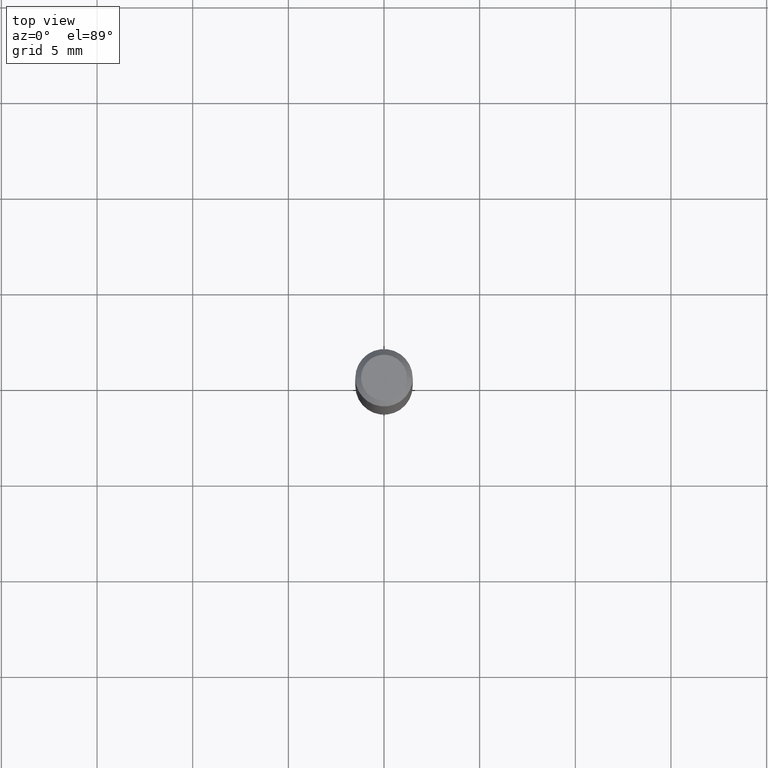
[diagram: clean part render]
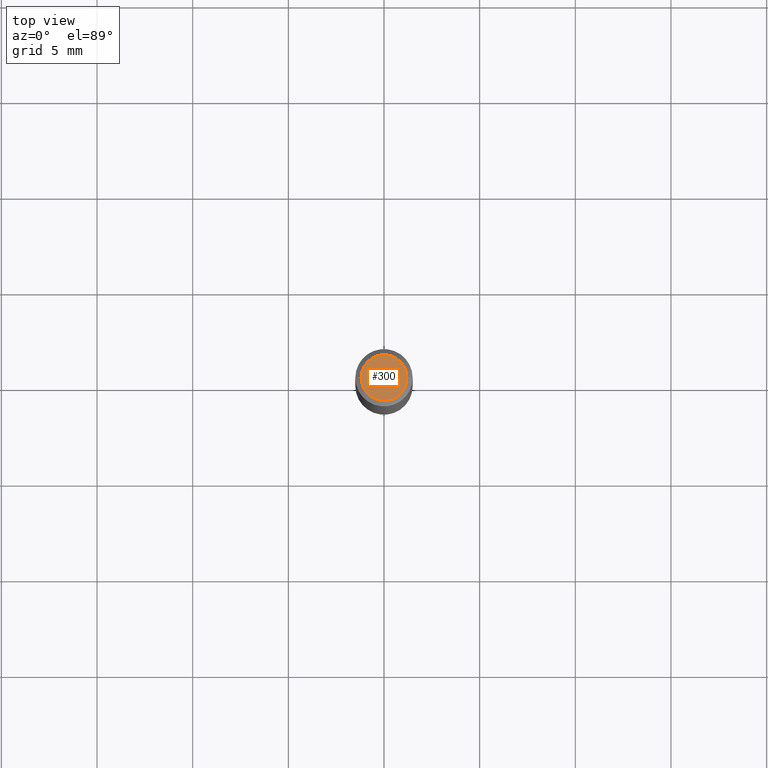
[diagram: same view with one face highlighted and labeled with its STEP entity id]
A machine part, top view. The second image highlights one B-rep face of the part: STEP entity #300.
In plain terms, the highlighted planar face has unit normal (0, -0, -1).
Its self-contained STEP definition (entity closure, byte-faithful):
#23 = DIRECTION ( 'NONE',  ( -2.445468806185136597E-29, 3.491481338843145583E-15, 1.000000000000000000 ) ) ;
#24 = EDGE_CURVE ( 'NONE', #42, #486, #441, .T. ) ;
#35 = CARTESIAN_POINT ( 'NONE',  ( 4.132873053354867254E-48, -5.900647395337818946E-34, -1.690012582823346072E-19 ) ) ;
#36 = AXIS2_PLACEMENT_3D ( 'NONE', #426, #41, #484 ) ;
#41 = DIRECTION ( 'NONE',  ( -2.445468806185136597E-29, 3.491481338843145583E-15, 1.000000000000000000 ) ) ;
#42 = VERTEX_POINT ( 'NONE', #293 ) ;
#165 = AXIS2_PLACEMENT_3D ( 'NONE', #35, #288, #442 ) ;
#175 = CARTESIAN_POINT ( 'NONE',  ( 0.04724000000000000421, -3.852183633974369345E-16, -3.380025165621689721E-19 ) ) ;
#176 = PLANE ( 'NONE',  #165 ) ;
#179 = EDGE_CURVE ( 'NONE', #486, #42, #370, .T. ) ;
#230 = ORIENTED_EDGE ( 'NONE', *, *, #179, .T. ) ;
#236 = DIRECTION ( 'NONE',  ( 1.000000000000000000, -6.982962677686266711E-15, 4.876185090822587894E-29 ) ) ;
#288 = DIRECTION ( 'NONE',  ( 2.438088387897960049E-29, -3.491481338843145188E-15, -1.000000000000000000 ) ) ;
#293 = CARTESIAN_POINT ( 'NONE',  ( -0.04724000000000000421, 3.504923541997677355E-16, -3.380025165670481712E-19 ) ) ;
#300 = ADVANCED_FACE ( 'NONE', ( #363 ), #176, .F. ) ;
#363 = FACE_OUTER_BOUND ( 'NONE', #380, .T. ) ;
#370 = CIRCLE ( 'NONE', #475, 0.04724000000000000421 ) ;
#380 = EDGE_LOOP ( 'NONE', ( #466, #230 ) ) ;
#425 = CARTESIAN_POINT ( 'NONE',  ( 8.265746106709734507E-48, -1.180129479067563789E-33, -3.380025165646692144E-19 ) ) ;
#426 = CARTESIAN_POINT ( 'NONE',  ( 8.265746106709734507E-48, -1.180129479067563789E-33, -3.380025165646692144E-19 ) ) ;
#441 = CIRCLE ( 'NONE', #36, 0.04724000000000000421 ) ;
#442 = DIRECTION ( 'NONE',  ( -1.000000000000000000, 6.982962677686265922E-15, -4.876176775795935793E-29 ) ) ;
#466 = ORIENTED_EDGE ( 'NONE', *, *, #24, .T. ) ;
#475 = AXIS2_PLACEMENT_3D ( 'NONE', #425, #23, #236 ) ;
#484 = DIRECTION ( 'NONE',  ( 1.000000000000000000, -6.982962677686266711E-15, 4.876185090822587894E-29 ) ) ;
#486 = VERTEX_POINT ( 'NONE', #175 ) ;